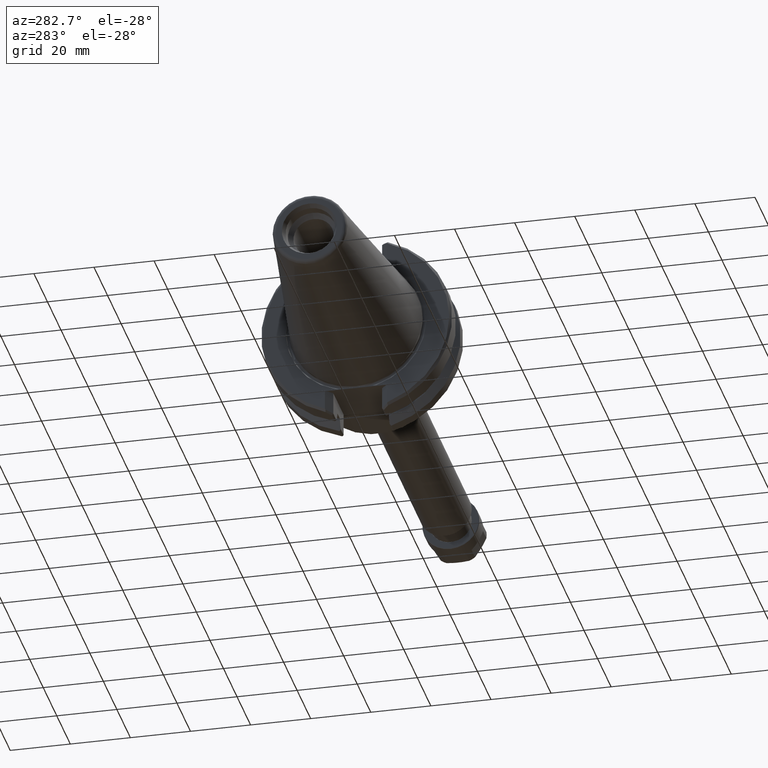
[diagram: clean part render]
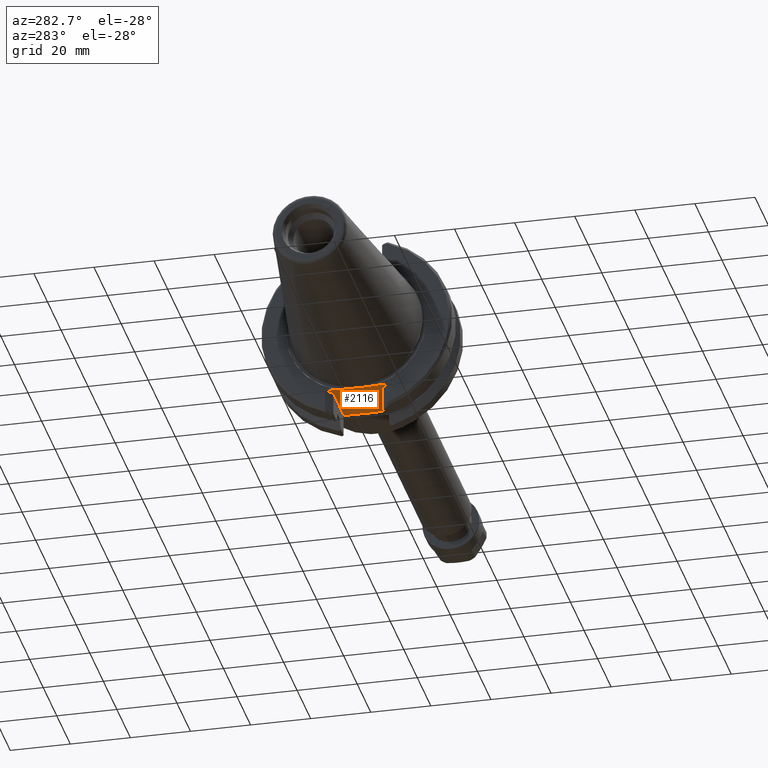
[diagram: same view with one face highlighted and labeled with its STEP entity id]
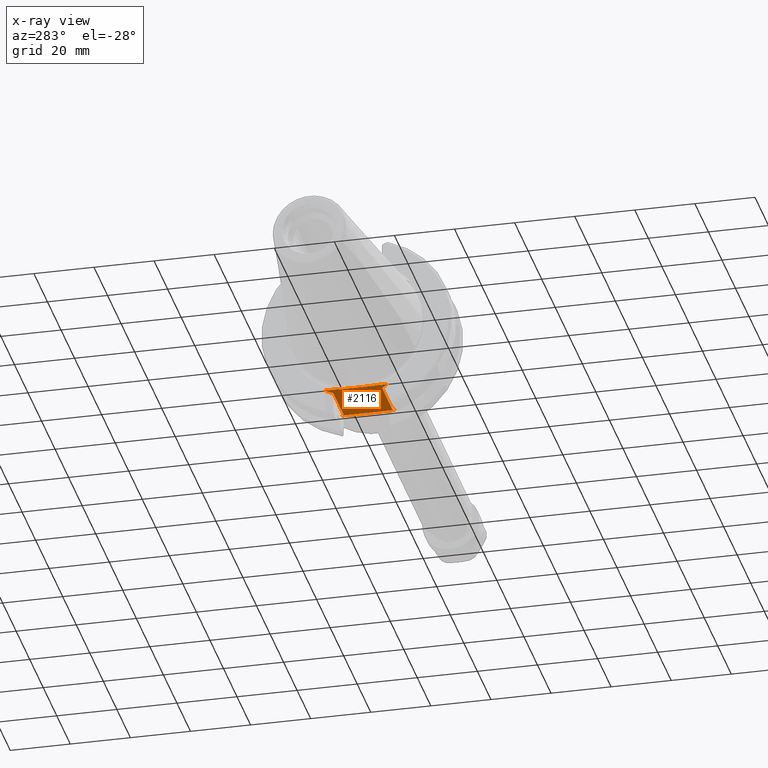
[diagram: x-ray of the same camera — body ghosted, the highlighted face saturated]
A machine part, auxiliary view. The second image highlights one B-rep face of the part: STEP entity #2116.
The next image is the same camera in x-ray: the body ghosted, the highlighted face saturated — about 0% of this face is hidden behind the body in this view.
In plain terms, the highlighted planar face has unit normal (0, 0, 1).
Its self-contained STEP definition (entity closure, byte-faithful):
#66=(
BOUNDED_CURVE()
B_SPLINE_CURVE(2,(#4173,#4174,#4175),.UNSPECIFIED.,.F.,.F.)
B_SPLINE_CURVE_WITH_KNOTS((3,3),(0.,0.0495750865418953),.UNSPECIFIED.)
CURVE()
GEOMETRIC_REPRESENTATION_ITEM()
RATIONAL_B_SPLINE_CURVE((1.,1.00005258182209,1.))
REPRESENTATION_ITEM('')
);
#67=(
BOUNDED_CURVE()
B_SPLINE_CURVE(2,(#4178,#4179,#4180),.UNSPECIFIED.,.F.,.F.)
B_SPLINE_CURVE_WITH_KNOTS((3,3),(0.,0.0495750865418953),.UNSPECIFIED.)
CURVE()
GEOMETRIC_REPRESENTATION_ITEM()
RATIONAL_B_SPLINE_CURVE((1.,1.00005258182209,1.))
REPRESENTATION_ITEM('')
);
#149=LINE('',#3038,#263);
#155=LINE('',#3053,#269);
#160=LINE('',#3580,#274);
#176=LINE('',#3991,#290);
#183=LINE('',#4012,#297);
#191=LINE('',#4045,#305);
#192=LINE('',#4048,#306);
#194=LINE('',#4063,#308);
#201=LINE('',#4080,#315);
#204=LINE('',#4119,#318);
#263=VECTOR('',#2434,0.170411913350653);
#269=VECTOR('',#2444,0.170411913349964);
#274=VECTOR('',#2531,0.127279220613589);
#290=VECTOR('',#2575,0.127279220613568);
#297=VECTOR('',#2584,0.5952);
#305=VECTOR('',#2600,0.158671957902933);
#306=VECTOR('',#2603,0.158671957902484);
#308=VECTOR('',#2613,0.5952);
#315=VECTOR('',#2622,0.0353553390593216);
#318=VECTOR('',#2641,0.035355339059333);
#404=PLANE('',#2299);
#567=FACE_OUTER_BOUND('',#734,.T.);
#734=EDGE_LOOP('',(#1732,#1733,#1734,#1735,#1736,#1737,#1738,#1739,#1740,
#1741,#1742,#1743,#1744,#1745));
#921=B_SPLINE_CURVE_WITH_KNOTS('',3,(#3022,#3023,#3024,#3025,#3026,#3027,
#3028,#3029,#3030,#3031,#3032),.UNSPECIFIED.,.F.,.F.,(4,2,3,2,4),(2.48272063285708,
2.61227385157182,2.89874315587513,3.18521246017844,3.31476567889317),
 .UNSPECIFIED.);
#942=B_SPLINE_CURVE_WITH_KNOTS('',3,(#4184,#4185,#4186,#4187,#4188,#4189,
#4190,#4191,#4192,#4193,#4194,#4195,#4196,#4197,#4198,#4199,#4200,#4201,
#4202,#4203,#4204,#4205,#4206),.UNSPECIFIED.,.F.,.F.,(4,2,2,2,2,3,2,2,2,
2,4),(-0.557741337477251,-0.526262549450387,-0.445672851533177,-0.284493455698757,
-0.200077441680538,0.,0.200077441680538,0.284493455698757,0.445672851533177,
0.526262549450388,0.557741337477251),.UNSPECIFIED.);
#943=VERTEX_POINT('',#3020);
#944=VERTEX_POINT('',#3021);
#946=VERTEX_POINT('',#3037);
#953=VERTEX_POINT('',#3051);
#990=VERTEX_POINT('',#3577);
#991=VERTEX_POINT('',#3579);
#1011=VERTEX_POINT('',#3988);
#1012=VERTEX_POINT('',#3990);
#1019=VERTEX_POINT('',#4010);
#1028=VERTEX_POINT('',#4044);
#1029=VERTEX_POINT('',#4046);
#1032=VERTEX_POINT('',#4062);
#1056=VERTEX_POINT('',#4172);
#1057=VERTEX_POINT('',#4176);
#1152=EDGE_CURVE('',#943,#944,#921,.F.);
#1155=EDGE_CURVE('',#946,#943,#149,.T.);
#1163=EDGE_CURVE('',#944,#953,#155,.T.);
#1204=EDGE_CURVE('',#990,#991,#160,.F.);
#1235=EDGE_CURVE('',#1011,#1012,#176,.F.);
#1244=EDGE_CURVE('',#1011,#1019,#183,.T.);
#1256=EDGE_CURVE('',#1012,#1028,#191,.T.);
#1258=EDGE_CURVE('',#1029,#990,#192,.T.);
#1263=EDGE_CURVE('',#1032,#991,#194,.T.);
#1271=EDGE_CURVE('',#1032,#953,#201,.F.);
#1284=EDGE_CURVE('',#946,#1019,#204,.F.);
#1304=EDGE_CURVE('',#1056,#1028,#66,.T.);
#1306=EDGE_CURVE('',#1029,#1057,#67,.T.);
#1308=EDGE_CURVE('',#1057,#1056,#942,.T.);
#1732=ORIENTED_EDGE('',*,*,#1304,.T.);
#1733=ORIENTED_EDGE('',*,*,#1256,.F.);
#1734=ORIENTED_EDGE('',*,*,#1235,.F.);
#1735=ORIENTED_EDGE('',*,*,#1244,.T.);
#1736=ORIENTED_EDGE('',*,*,#1284,.F.);
#1737=ORIENTED_EDGE('',*,*,#1155,.T.);
#1738=ORIENTED_EDGE('',*,*,#1152,.T.);
#1739=ORIENTED_EDGE('',*,*,#1163,.T.);
#1740=ORIENTED_EDGE('',*,*,#1271,.F.);
#1741=ORIENTED_EDGE('',*,*,#1263,.T.);
#1742=ORIENTED_EDGE('',*,*,#1204,.F.);
#1743=ORIENTED_EDGE('',*,*,#1258,.F.);
#1744=ORIENTED_EDGE('',*,*,#1306,.T.);
#1745=ORIENTED_EDGE('',*,*,#1308,.T.);
#2116=ADVANCED_FACE('',(#567),#404,.F.);
#2299=AXIS2_PLACEMENT_3D('',#4236,#2720,#2721);
#2434=DIRECTION('',(0.,-1.,0.));
#2444=DIRECTION('',(0.,-1.,0.));
#2531=DIRECTION('',(-0.70710678118649,-0.707106781186605,0.));
#2575=DIRECTION('',(0.707106781186605,-0.70710678118649,0.));
#2584=DIRECTION('',(1.,1.62355115338718E-13,0.));
#2600=DIRECTION('',(0.,-1.,0.));
#2603=DIRECTION('',(0.,-1.,0.));
#2613=DIRECTION('',(-1.,-1.62429199352106E-13,0.));
#2622=DIRECTION('',(-0.707106781186663,0.707106781186433,0.));
#2641=DIRECTION('',(0.707106781186433,0.707106781186662,0.));
#2720=DIRECTION('center_axis',(0.,0.,1.));
#2721=DIRECTION('ref_axis',(1.,0.,0.));
#3020=CARTESIAN_POINT('',(0.75,0.174588086649691,-0.888));
#3021=CARTESIAN_POINT('',(0.75,-0.174588086649691,-0.888));
#3022=CARTESIAN_POINT('Ctrl Pts',(0.75,-0.174588086649691,-0.888));
#3023=CARTESIAN_POINT('Ctrl Pts',(0.75,-0.157586351910225,-0.888));
#3024=CARTESIAN_POINT('Ctrl Pts',(0.75064285068752,-0.137194400552612,-0.888));
#3025=CARTESIAN_POINT('Ctrl Pts',(0.752916249322132,-0.0826456219450955,
-0.888));
#3026=CARTESIAN_POINT('Ctrl Pts',(0.755281585811383,-0.0375943968901984,
-0.888));
#3027=CARTESIAN_POINT('Ctrl Pts',(0.755281585811383,0.,-0.888));
#3028=CARTESIAN_POINT('Ctrl Pts',(0.755281585811383,0.0375943968901984,
-0.888));
#3029=CARTESIAN_POINT('Ctrl Pts',(0.752916249322132,0.0826456219450955,
-0.888));
#3030=CARTESIAN_POINT('Ctrl Pts',(0.75064285068752,0.137194400552612,-0.888));
#3031=CARTESIAN_POINT('Ctrl Pts',(0.75,0.157586351910225,-0.888));
#3032=CARTESIAN_POINT('Ctrl Pts',(0.75,0.174588086649691,-0.888));
#3037=CARTESIAN_POINT('',(0.75,0.345000000000344,-0.888));
#3038=CARTESIAN_POINT('',(0.75,0.531250000000168,-0.888));
#3051=CARTESIAN_POINT('',(0.75,-0.344999999999656,-0.888));
#3053=CARTESIAN_POINT('',(0.75,0.531250000000168,-0.888));
#3577=CARTESIAN_POINT('',(0.0397999999999998,-0.409999999999775,-0.888));
#3579=CARTESIAN_POINT('',(0.1298,-0.319999999999761,-0.888));
#3580=CARTESIAN_POINT('',(0.337278137607462,-0.112521862392265,-0.888));
#3988=CARTESIAN_POINT('',(0.1298,0.320000000000239,-0.888));
#3990=CARTESIAN_POINT('',(0.0397999999999998,0.410000000000225,-0.888));
#3991=CARTESIAN_POINT('',(0.337278137607461,0.112521862392812,-0.888));
#4010=CARTESIAN_POINT('',(0.725,0.320000000000336,-0.888));
#4012=CARTESIAN_POINT('',(0.0397999999999478,0.320000000000225,-0.888));
#4044=CARTESIAN_POINT('',(0.0397999999999997,0.251328042097291,-0.888));
#4045=CARTESIAN_POINT('',(0.0397999999999998,0.531250000000168,-0.888));
#4046=CARTESIAN_POINT('',(0.0397999999999997,-0.251328042097291,-0.888));
#4048=CARTESIAN_POINT('',(0.0397999999999998,0.531250000000168,-0.888));
#4062=CARTESIAN_POINT('',(0.725,-0.319999999999664,-0.888));
#4063=CARTESIAN_POINT('',(1.21980000000005,-0.319999999999584,-0.888));
#4080=CARTESIAN_POINT('',(0.652428137607462,-0.247428137607149,-0.888));
#4119=CARTESIAN_POINT('',(0.652428137607461,0.247428137607774,-0.888));
#4172=CARTESIAN_POINT('',(0.0447609306503491,0.232451491516994,-0.888));
#4173=CARTESIAN_POINT('Ctrl Pts',(0.0447609306503492,0.232451491516993,
-0.888));
#4174=CARTESIAN_POINT('Ctrl Pts',(0.0423772503809871,0.241864330806736,
-0.888));
#4175=CARTESIAN_POINT('Ctrl Pts',(0.0397999999999478,0.251328042097482,
-0.888));
#4176=CARTESIAN_POINT('',(0.0447609306503491,-0.232451491516994,-0.888));
#4178=CARTESIAN_POINT('Ctrl Pts',(0.0397999999999478,-0.251328042097482,
-0.888));
#4179=CARTESIAN_POINT('Ctrl Pts',(0.0423772503809871,-0.241864330806736,
-0.888));
#4180=CARTESIAN_POINT('Ctrl Pts',(0.0447609306503492,-0.232451491516993,
-0.888));
#4184=CARTESIAN_POINT('Ctrl Pts',(0.0447609306503489,-0.232451491516994,
-0.888));
#4185=CARTESIAN_POINT('Ctrl Pts',(0.045794716373238,-0.228369207917696,
-0.888));
#4186=CARTESIAN_POINT('Ctrl Pts',(0.0466801543784573,-0.22420453973451,
-0.888));
#4187=CARTESIAN_POINT('Ctrl Pts',(0.0494509697285654,-0.209147283819664,
-0.888));
#4188=CARTESIAN_POINT('Ctrl Pts',(0.0507532077198799,-0.197909893875687,
-0.888));
#4189=CARTESIAN_POINT('Ctrl Pts',(0.0535210207089512,-0.163795962210321,
-0.888));
#4190=CARTESIAN_POINT('Ctrl Pts',(0.0538406204335659,-0.140617627868851,
-0.888));
#4191=CARTESIAN_POINT('Ctrl Pts',(0.0538406204335659,-0.108387259121786,
-0.888));
#4192=CARTESIAN_POINT('Ctrl Pts',(0.0537139416358216,-0.0950940022289392,
-0.888));
#4193=CARTESIAN_POINT('Ctrl Pts',(0.0532523926386834,-0.0577617560765061,
-0.888));
#4194=CARTESIAN_POINT('Ctrl Pts',(0.0527905786973098,-0.0262568821103068,
-0.888));
#4195=CARTESIAN_POINT('Ctrl Pts',(0.0527905786973098,0.,-0.888));
#4196=CARTESIAN_POINT('Ctrl Pts',(0.0527905786973098,0.0262568821103068,
-0.888));
#4197=CARTESIAN_POINT('Ctrl Pts',(0.0532523926386834,0.0577617560765061,
-0.888));
#4198=CARTESIAN_POINT('Ctrl Pts',(0.0537139416358216,0.0950940022289392,
-0.888));
#4199=CARTESIAN_POINT('Ctrl Pts',(0.0538406204335659,0.108387259121786,
-0.888));
#4200=CARTESIAN_POINT('Ctrl Pts',(0.0538406204335659,0.140617627868852,
-0.888));
#4201=CARTESIAN_POINT('Ctrl Pts',(0.0535210207089512,0.163795962210321,
-0.888));
#4202=CARTESIAN_POINT('Ctrl Pts',(0.0507532077198799,0.197909893875687,
-0.888));
#4203=CARTESIAN_POINT('Ctrl Pts',(0.0494509697285654,0.209147283819664,
-0.888));
#4204=CARTESIAN_POINT('Ctrl Pts',(0.0466801543784573,0.22420453973451,-0.888));
#4205=CARTESIAN_POINT('Ctrl Pts',(0.045794716373238,0.228369207917696,-0.888));
#4206=CARTESIAN_POINT('Ctrl Pts',(0.0447609306503489,0.232451491516994,
-0.888));
#4236=CARTESIAN_POINT('Origin',(0.729712550429846,3.36804656106719E-13,
-0.888));